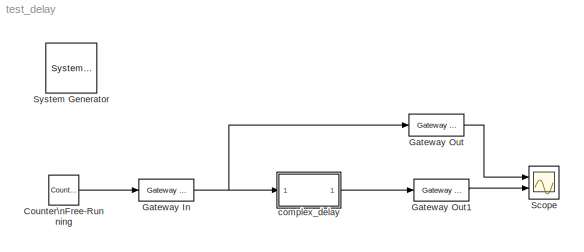
MODEL test_delay
KIND model
BLOCK [Reference]  System Generator  REF=xbsIndex_r3/ System Generator
  AttributesFormatString = System\\nGenerator
  Ports = []
  ShowPortLabels = on
  SourceBlock = xbsIndex_r3/ System Generator
  SourceType = Xilinx System Generator
  Tag = genX
  UserData = DataTag0
  UserDataPersistent = on
  core_generation = According to Block Masks
  dbl_ovrd = According to Block Masks
  deprecated_control = off
  directory = ./netlist
  eval_field = 0
  incr_netlist = off
  package = bg575
  part = xc2v1000
  run_coregen = off
  simulink_period = 1
  speed = -4
  synthesis_tool = XST
  sysclk_period = 100
  testbench = off
  trim_vbits = Everywhere in SubSystem
  xilinxfamily = Virtex2
BLOCK [Reference] Counter\nFree-Running  REF=simulink/Sources/Counter\nFree-Running
  NumBits = 4
  Ports = [0, 1]
  ShowPortLabels = on
  SourceBlock = simulink/Sources/Counter\nFree-Running
  SourceType = Counter Free-Running
  tsamp = -1
BLOCK [Reference] Gateway In  REF=xbsIndex_r3/Gateway In
  LOCs = {}
  Ports = [1, 1]
  SourceBlock = xbsIndex_r3/Gateway In
  SourceType = Xilinx Gateway In
  arith_type = Unsigned
  bin_pt = 0
  dbl_ovrd = off
  locs_specified = off
  n_bits = 16
  needs_fixed_name = off
  overflow = Wrap
  period = 1
  quantization = Truncate
  show_param = off
  timing_constraint = None
  xl_area = [0, 0, 0, 0, 0, 0, 0]
  xl_use_area = off
BLOCK [Reference] Gateway Out  REF=xbsIndex_r3/Gateway Out
  LOCs = {}
  Ports = [1, 1]
  SourceBlock = xbsIndex_r3/Gateway Out
  SourceType = Xilinx Gateway Out
  arith_type = Boolean
  bin_pt = 6
  hdl_port = on
  locs_specified = off
  nbits = 8
  needs_fixed_name = off
  output_type = Double
  overflow = Wrap
  quantization = Truncate
  show_param = off
  timing_constraint = None
  xl_area = [0, 0, 0, 0, 0, 0, 0]
  xl_use_area = off
BLOCK [Reference] Gateway Out1  REF=xbsIndex_r3/Gateway Out
  LOCs = {}
  Ports = [1, 1]
  SourceBlock = xbsIndex_r3/Gateway Out
  SourceType = Xilinx Gateway Out
  arith_type = Boolean
  bin_pt = 6
  hdl_port = on
  locs_specified = off
  nbits = 8
  needs_fixed_name = off
  output_type = Double
  overflow = Wrap
  quantization = Truncate
  show_param = off
  timing_constraint = None
  xl_area = [0, 0, 0, 0, 0, 0, 0]
  xl_use_area = off
BLOCK [Scope] Scope
  DataFormat = StructureWithTime
  NumInputPorts = 2
  Ports = [2]
  YMax = 5~5
  YMin = -5~-5
  ZoomMode = xonly
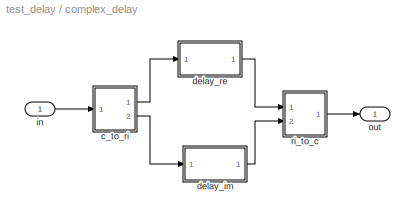
BLOCK [SubSystem] complex_delay
  AttributesFormatString = depth = 8\ndelay bram
  MaskCallbackString = ||
  MaskDescription = A delay block that treats its input as complex, splits it into real and imaginary components, delays each component by a specified amount, and then re-joins them into a complex output.  The underlying storage is user-selectable (either BRAM or SLR16 elements).
  MaskEnableString = on,on,on
  MaskHelp = <pre>\nDescription::\n\nA delay block that treats its input as complex, splits it into real and imaginary components,\ndelays each component by a specified amount, and then re-joins them into a complex\noutput.  The underlying storage is user-selectable (either BRAM or SLR16 elements).\n\nMask Parameters::\n\nDelay Depth (delay_depth): The length of the delay.\n\nBit Width (n_bits): Specifies the ...<+236ch>
  MaskIconFrame = on
  MaskIconOpaque = on
  MaskIconRotate = none
  MaskIconUnits = autoscale
  MaskInitialization = complex_delay_init(gcb, ...\n    delay_depth,n_bits,use_bram);\n
  MaskPromptString = Delay Depth|Bit Width|Use BRAM
  MaskSelfModifiable = on
  MaskStyleString = edit,edit,checkbox
  MaskTabNameString = ,,
  MaskToolTipString = on,on,on
  MaskTunableValueString = off,off,off
  MaskType = Complex Delay
  MaskValueString = 8|8|on
  MaskVarAliasString = ,,
  MaskVariables = delay_depth=@1;n_bits=@2;use_bram=@3;
  MaskVisibilityString = on,on,on
  MinAlgLoopOccurrences = off
  Ports = [1, 1]
  RTWSystemCode = Auto
  TreatAsAtomicUnit = off
  UserData = DataTag1
  UserDataPersistent = on
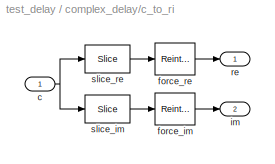
BLOCK [SubSystem] complex_delay/c_to_ri
  AttributesFormatString = %<n_bits>_%<bin_pt> r/i
  MaskCallbackString = |
  MaskDescription = Outputs real and imaginary components of a complex input.
  MaskEnableString = on,on
  MaskHelp = <pre>\nDescription::\n\nOutputs real and imaginary components of a complex input.\nUseful for simplifying interconnects.\nSee also: Real-Imag to Complex (ri_to_c)\n\nMask Parameters::\n\nBit Width (n_bits): Specifies the width of the real/imaginary components.\nAssumed equal for both components.\n\nBinary Point (bin_pt): Specifies the binary point location in the real/imaginary components.\nAssume...<+36ch>
  MaskIconFrame = on
  MaskIconOpaque = on
  MaskIconRotate = none
  MaskIconUnits = autoscale
  MaskInitialization = c_to_ri_init(gcb,n_bits,bin_pt);
  MaskPromptString = Bit Width|Binary Point
  MaskSelfModifiable = on
  MaskStyleString = edit,edit
  MaskTabNameString = ,
  MaskToolTipString = on,on
  MaskTunableValueString = on,on
  MaskType = Complex to Real-Imag
  MaskValueString = 8|0
  MaskVarAliasString = ,
  MaskVariables = n_bits=@1;bin_pt=@2;
  MaskVisibilityString = on,on
  MinAlgLoopOccurrences = off
  Ports = [1, 2]
  RTWSystemCode = Auto
  TreatAsAtomicUnit = off
  UserData = DataTag2
  UserDataPersistent = on
BLOCK [Inport] complex_delay/c_to_ri/c
  IconDisplay = Port number
  LatchInput = off
  Port = 1
BLOCK [Reference] complex_delay/c_to_ri/force_im  REF=xbsIndex_r3/Reinterpret
  Ports = [1, 1]
  SourceBlock = xbsIndex_r3/Reinterpret
  SourceType = Xilinx Type Reinterpreting Block
  arith_type = Signed  (2's comp)
  bin_pt = 0
  force_arith_type = on
  force_bin_pt = on
  force_valid = on
BLOCK [Reference] complex_delay/c_to_ri/force_re  REF=xbsIndex_r3/Reinterpret
  Ports = [1, 1]
  SourceBlock = xbsIndex_r3/Reinterpret
  SourceType = Xilinx Type Reinterpreting Block
  arith_type = Signed  (2's comp)
  bin_pt = 0
  force_arith_type = on
  force_bin_pt = on
  force_valid = on
BLOCK [Outport] complex_delay/c_to_ri/im
  BusOutputAsStruct = off
  IconDisplay = Port number
  Port = 2
BLOCK [Outport] complex_delay/c_to_ri/re
  BusOutputAsStruct = off
  IconDisplay = Port number
BLOCK [Reference] complex_delay/c_to_ri/slice_im  REF=xbsIndex_r3/Slice
  Ports = [1, 1]
  SourceBlock = xbsIndex_r3/Slice
  SourceType = Xilinx Slice Block
  base0 = LSB of Input
  base1 = MSB of Input
  bit0 = 0
  bit1 = 0
  boolean_output = off
  dbl_ovrd = off
  explicit_period = off
  mode = Lower Bit Location + Width
  nbits = 8
  period = 1
BLOCK [Reference] complex_delay/c_to_ri/slice_re  REF=xbsIndex_r3/Slice
  Ports = [1, 1]
  SourceBlock = xbsIndex_r3/Slice
  SourceType = Xilinx Slice Block
  base0 = LSB of Input
  base1 = MSB of Input
  bit0 = 0
  bit1 = 0
  boolean_output = off
  dbl_ovrd = off
  explicit_period = off
  mode = Upper Bit Location + Width
  nbits = 8
  period = 1
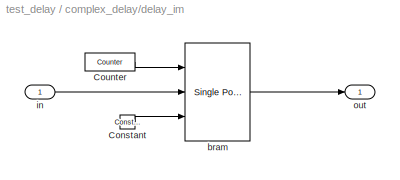
BLOCK [SubSystem] complex_delay/delay_im
  AttributesFormatString = bram depth = 8
  MaskCallbackString = |
  MaskDescription = A delay block that uses BRAM for its storage.
  MaskEnableString = on,off
  MaskHelp = <pre>\nDescription::\n\nA delay block that uses BRAM for its storage.\n\nMask Parameters::\n\nDelay Depth (delay_depth): The length of the delay.\n\nBuffer Latency (buffer_latency): The latency of the underlying storage.\n\nBuffer Latency defaults to 1 and cannot be changed via the block's dialog box.\nFuture versions may enable the setting of that parameter from the dialog.\n</pre>
  MaskIconFrame = on
  MaskIconOpaque = on
  MaskIconRotate = none
  MaskIconUnits = autoscale
  MaskPromptString = Delay Depth|Buffer Latency
  MaskSelfModifiable = on
  MaskStyleString = edit,edit
  MaskTabNameString = ,
  MaskToolTipString = on,on
  MaskTunableValueString = on,off
  MaskType = BRAM Delay
  MaskValueString = 8|
  MaskVarAliasString = ,
  MaskVariables = delay_depth=@1;buffer_latency=@2;
  MaskVisibilityString = on,off
  MinAlgLoopOccurrences = off
  Ports = [1, 1]
  RTWSystemCode = Auto
  TreatAsAtomicUnit = off
  UserData = DataTag3
  UserDataPersistent = on
BLOCK [Reference] complex_delay/delay_im/Constant  REF=xbsIndex_r3/Constant
  Ports = [0, 1]
  SourceBlock = xbsIndex_r3/Constant
  SourceType = Xilinx Constant Block
  arith_type = Boolean
  bin_pt = 0
  carry = CIN
  const = 1
  dbl_ovrd = off
  equ = P=C
  explicit_period = on
  inp1 = P
  inp2 = PCIN>>17
  iostate = 0
  n_bits = 1
  opr = +
  opselect = C
  period = 1
BLOCK [Reference] complex_delay/delay_im/Counter  REF=xbsIndex_r3/Counter
  Ports = [0, 1]
  SourceBlock = xbsIndex_r3/Counter
  SourceType = Xilinx Counter Block
  arith_type = Unsigned
  bin_pt = 0
  cnt_by_val = 1
  cnt_to = 6
  cnt_type = Count Limited
  dbl_ovrd = off
  en = off
  explicit_period = off
  gen_core = off
  load_pin = off
  n_bits = 3
  operation = Up
  period = 1
  rst = off
  show_param = off
  start_count = 0
  use_rpm = on
  xl_area = [0, 0, 0, 0, 0, 0, 0]
  xl_use_area = off
BLOCK [Reference] complex_delay/delay_im/bram  REF=xbsIndex_r3/Single Port RAM
  Ports = [3, 1]
  SourceBlock = xbsIndex_r3/Single Port RAM
  SourceType = Xilinx Single Port Random Access Memory
  dbl_ovrd = off
  depth = 8
  distributed_mem = off
  en = off
  explicit_period = off
  gen_core = off
  initVector = 0
  init_reg = 0
  init_zero = on
  latency = 1
  period = 1
  rst = off
  show_param = off
  use_rpm = off
  write_mode = Read Before Write
  xl_area = [0, 0, 0, 0, 0, 0, 0]
  xl_use_area = off
BLOCK [Inport] complex_delay/delay_im/in
  IconDisplay = Port number
  LatchInput = off
  Port = 1
BLOCK [Outport] complex_delay/delay_im/out
  BusOutputAsStruct = off
  IconDisplay = Port number
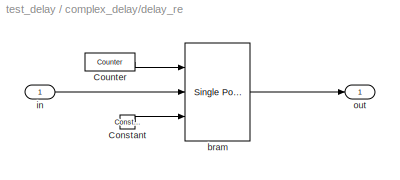
BLOCK [SubSystem] complex_delay/delay_re
  AttributesFormatString = bram depth = 8
  MaskCallbackString = |
  MaskDescription = A delay block that uses BRAM for its storage.
  MaskEnableString = on,off
  MaskHelp = <pre>\nDescription::\n\nA delay block that uses BRAM for its storage.\n\nMask Parameters::\n\nDelay Depth (delay_depth): The length of the delay.\n\nBuffer Latency (buffer_latency): The latency of the underlying storage.\n\nBuffer Latency defaults to 1 and cannot be changed via the block's dialog box.\nFuture versions may enable the setting of that parameter from the dialog.\n</pre>
  MaskIconFrame = on
  MaskIconOpaque = on
  MaskIconRotate = none
  MaskIconUnits = autoscale
  MaskPromptString = Delay Depth|Buffer Latency
  MaskSelfModifiable = on
  MaskStyleString = edit,edit
  MaskTabNameString = ,
  MaskToolTipString = on,on
  MaskTunableValueString = on,off
  MaskType = BRAM Delay
  MaskValueString = 8|
  MaskVarAliasString = ,
  MaskVariables = delay_depth=@1;buffer_latency=@2;
  MaskVisibilityString = on,off
  MinAlgLoopOccurrences = off
  Ports = [1, 1]
  RTWSystemCode = Auto
  TreatAsAtomicUnit = off
  UserData = DataTag4
  UserDataPersistent = on
BLOCK [Reference] complex_delay/delay_re/Constant  REF=xbsIndex_r3/Constant
  Ports = [0, 1]
  SourceBlock = xbsIndex_r3/Constant
  SourceType = Xilinx Constant Block
  arith_type = Boolean
  bin_pt = 0
  carry = CIN
  const = 1
  dbl_ovrd = off
  equ = P=C
  explicit_period = on
  inp1 = P
  inp2 = PCIN>>17
  iostate = 0
  n_bits = 1
  opr = +
  opselect = C
  period = 1
BLOCK [Reference] complex_delay/delay_re/Counter  REF=xbsIndex_r3/Counter
  Ports = [0, 1]
  SourceBlock = xbsIndex_r3/Counter
  SourceType = Xilinx Counter Block
  arith_type = Unsigned
  bin_pt = 0
  cnt_by_val = 1
  cnt_to = 6
  cnt_type = Count Limited
  dbl_ovrd = off
  en = off
  explicit_period = off
  gen_core = off
  load_pin = off
  n_bits = 3
  operation = Up
  period = 1
  rst = off
  show_param = off
  start_count = 0
  use_rpm = on
  xl_area = [0, 0, 0, 0, 0, 0, 0]
  xl_use_area = off
BLOCK [Reference] complex_delay/delay_re/bram  REF=xbsIndex_r3/Single Port RAM
  Ports = [3, 1]
  SourceBlock = xbsIndex_r3/Single Port RAM
  SourceType = Xilinx Single Port Random Access Memory
  dbl_ovrd = off
  depth = 8
  distributed_mem = off
  en = off
  explicit_period = off
  gen_core = off
  initVector = 0
  init_reg = 0
  init_zero = on
  latency = 1
  period = 1
  rst = off
  show_param = off
  use_rpm = off
  write_mode = Read Before Write
  xl_area = [0, 0, 0, 0, 0, 0, 0]
  xl_use_area = off
BLOCK [Inport] complex_delay/delay_re/in
  IconDisplay = Port number
  LatchInput = off
  Port = 1
BLOCK [Outport] complex_delay/delay_re/out
  BusOutputAsStruct = off
  IconDisplay = Port number
BLOCK [Inport] complex_delay/in
  IconDisplay = Port number
  LatchInput = off
  Port = 1
BLOCK [Outport] complex_delay/out
  BusOutputAsStruct = off
  IconDisplay = Port number
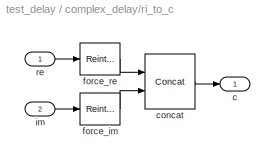
BLOCK [SubSystem] complex_delay/ri_to_c
  MaskDescription = Concatenates real and imaginary inputs into a complex output.
  MaskHelp = <pre>\nDescription::\n\nConcatenates a real and imaginary input into a complex output.\nUseful for simplifying interconnects.\nSee also: Complex to Real-Imag (c_to_ri)\n\nMask Parameters::\n\n(N/A)\n</pre>
  MaskIconFrame = on
  MaskIconOpaque = on
  MaskIconRotate = none
  MaskIconUnits = autoscale
  MaskInitialization = ri_to_c_init(gcb);
  MaskSelfModifiable = on
  MaskType = Real-Imag to Complex
  MinAlgLoopOccurrences = off
  Ports = [2, 1]
  RTWSystemCode = Auto
  TreatAsAtomicUnit = off
  UserData = DataTag5
  UserDataPersistent = on
BLOCK [Outport] complex_delay/ri_to_c/c
  BusOutputAsStruct = off
  IconDisplay = Port number
BLOCK [Reference] complex_delay/ri_to_c/concat  REF=xbsIndex_r3/Concat
  Ports = [2, 1]
  SourceBlock = xbsIndex_r3/Concat
  SourceType = Xilinx Bus Concatenator
  dbl_ovrd = off
  explicit_period = off
  num_inputs = 2
  period = 1
BLOCK [Reference] complex_delay/ri_to_c/force_im  REF=xbsIndex_r3/Reinterpret
  Ports = [1, 1]
  SourceBlock = xbsIndex_r3/Reinterpret
  SourceType = Xilinx Type Reinterpreting Block
  arith_type = Unsigned
  bin_pt = 0
  force_arith_type = on
  force_bin_pt = on
  force_valid = on
BLOCK [Reference] complex_delay/ri_to_c/force_re  REF=xbsIndex_r3/Reinterpret
  Ports = [1, 1]
  SourceBlock = xbsIndex_r3/Reinterpret
  SourceType = Xilinx Type Reinterpreting Block
  arith_type = Unsigned
  bin_pt = 0
  force_arith_type = on
  force_bin_pt = on
  force_valid = on
BLOCK [Inport] complex_delay/ri_to_c/im
  IconDisplay = Port number
  LatchInput = off
  Port = 2
BLOCK [Inport] complex_delay/ri_to_c/re
  IconDisplay = Port number
  LatchInput = off
  Port = 1
LINE Counter\nFree-Running:1 -> Gateway In:1
NET Gateway In:1 -> Gateway Out:1, complex_delay:1
LINE Gateway Out1:1 -> Scope:2
LINE Gateway Out:1 -> Scope:1
NET complex_delay/c_to_ri/c:1 -> complex_delay/c_to_ri/slice_im:1, complex_delay/c_to_ri/slice_re:1
LINE complex_delay/c_to_ri/force_im:1 -> complex_delay/c_to_ri/im:1
LINE complex_delay/c_to_ri/force_re:1 -> complex_delay/c_to_ri/re:1
LINE complex_delay/c_to_ri/slice_im:1 -> complex_delay/c_to_ri/force_im:1
LINE complex_delay/c_to_ri/slice_re:1 -> complex_delay/c_to_ri/force_re:1
LINE complex_delay/c_to_ri:1 -> complex_delay/delay_re:1
LINE complex_delay/c_to_ri:2 -> complex_delay/delay_im:1
LINE complex_delay/delay_im/Constant:1 -> complex_delay/delay_im/bram:3
LINE complex_delay/delay_im/Counter:1 -> complex_delay/delay_im/bram:1
LINE complex_delay/delay_im/bram:1 -> complex_delay/delay_im/out:1
LINE complex_delay/delay_im/in:1 -> complex_delay/delay_im/bram:2
LINE complex_delay/delay_im:1 -> complex_delay/ri_to_c:2
LINE complex_delay/delay_re/Constant:1 -> complex_delay/delay_re/bram:3
LINE complex_delay/delay_re/Counter:1 -> complex_delay/delay_re/bram:1
LINE complex_delay/delay_re/bram:1 -> complex_delay/delay_re/out:1
LINE complex_delay/delay_re/in:1 -> complex_delay/delay_re/bram:2
LINE complex_delay/delay_re:1 -> complex_delay/ri_to_c:1
LINE complex_delay/in:1 -> complex_delay/c_to_ri:1
LINE complex_delay/ri_to_c/concat:1 -> complex_delay/ri_to_c/c:1
LINE complex_delay/ri_to_c/force_im:1 -> complex_delay/ri_to_c/concat:2
LINE complex_delay/ri_to_c/force_re:1 -> complex_delay/ri_to_c/concat:1
LINE complex_delay/ri_to_c/im:1 -> complex_delay/ri_to_c/force_im:1
LINE complex_delay/ri_to_c/re:1 -> complex_delay/ri_to_c/force_re:1
LINE complex_delay/ri_to_c:1 -> complex_delay/out:1
LINE complex_delay:1 -> Gateway Out1:1
note: NET lines group one-source signal fan-out (src -> all destinations, sorted); 1:1 wires keep LINE
